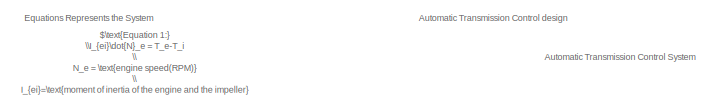
[diagram: root canvas - part 1/2, top left region]
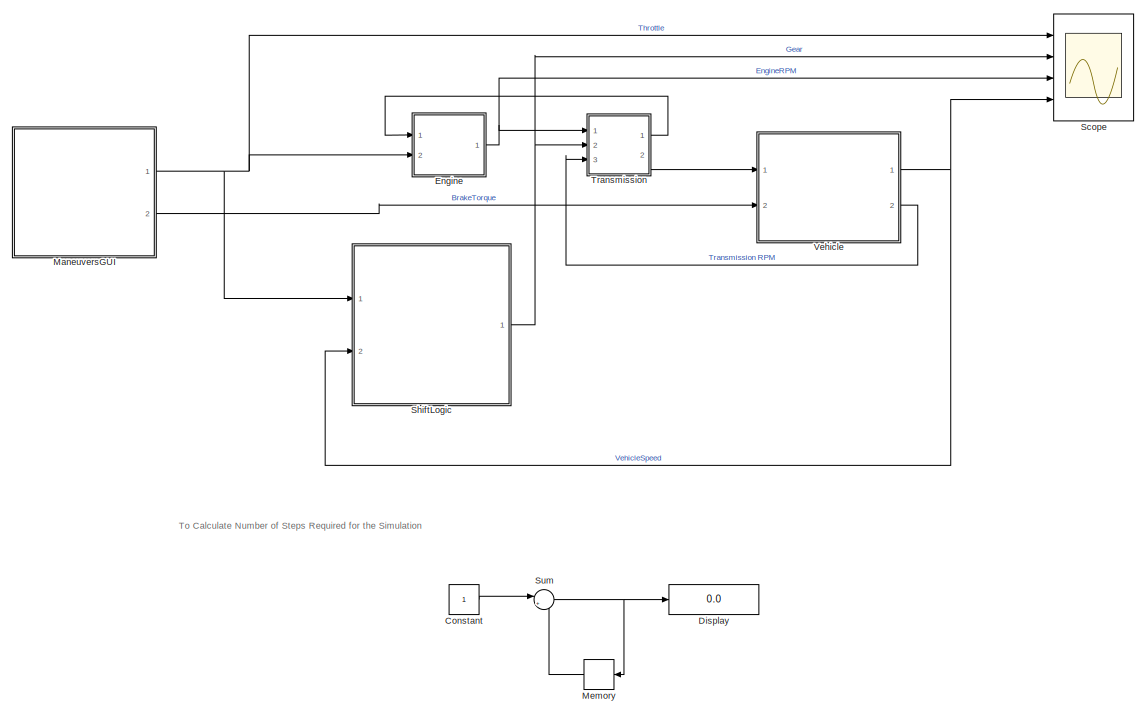
[diagram: root canvas - part 2/2, center side, full height]
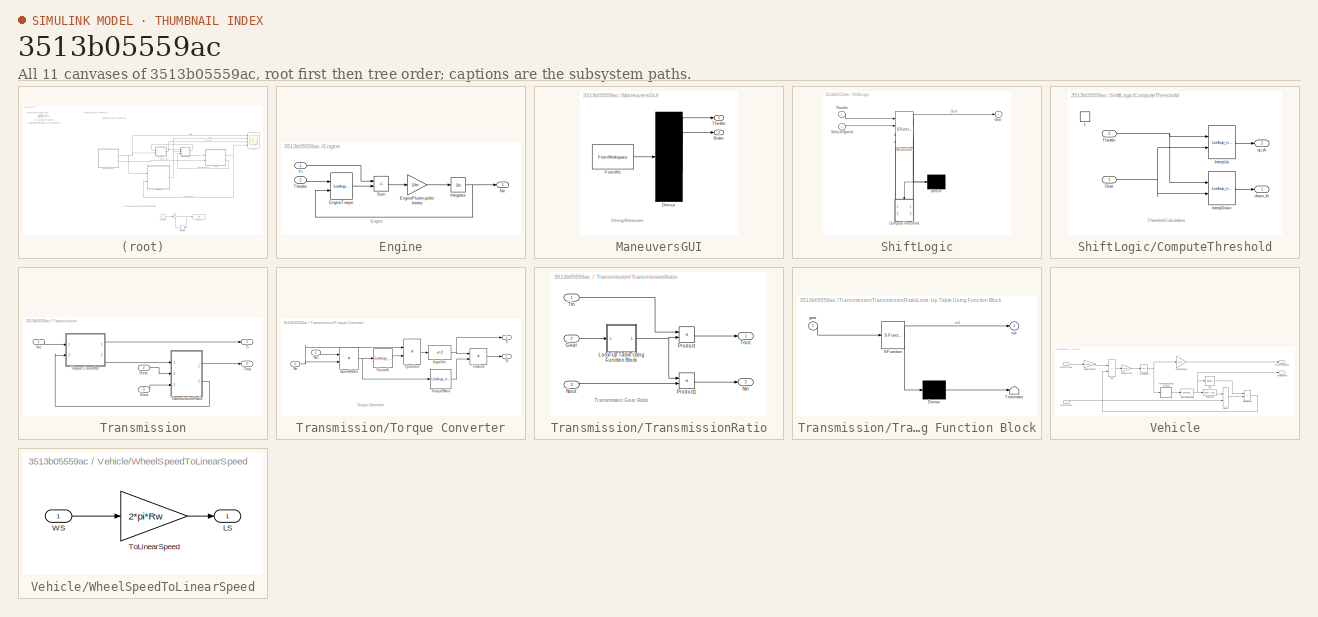
[diagram: thumbnail index - all 11 canvases of the model, root first then tree order]
MODEL slx_3513b05559ac
KIND model
CONFIG AbsTol = auto
CONFIG EnableMultiTasking = off
CONFIG FixedStep = 0.04
CONFIG MaxStep = auto
CONFIG MinStep = auto
CONFIG PreLoadFcn = clearvars\nload('vehicleData.mat')
CONFIG RelTol = 1e-3
CONFIG SampleTimeConstraint = Unconstrained
CONFIG SolverName = ode5
CONFIG StartFcn = cput= cputime;
CONFIG StartTime = 0.0
CONFIG StopFcn = disp("CPU Time Elapsed"); cputime-cput
CONFIG StopTime = 50
BLOCK [Constant] Constant
BLOCK [Display] Display
  Decimation = 1
  Ports = [1]
BLOCK [SubSystem] Engine
  Ports = [2, 1]
  RequestExecContextInheritance = off
BLOCK [Gain] Engine/EnginePlusImpellerInertia
  Gain = 1/Iei
  OutDataTypeStr = Inherit: Same as input
  ParamDataTypeStr = Inherit: Same as input
  SaturateOnIntegerOverflow = on
BLOCK [Lookup_n-D] Engine/EngineTorque
  BreakpointsForDimension1 = TH_VEC
  BreakpointsForDimension2 = NE_VEC
  InputPortMap = u0,u1
  Ports = [2, 1]
  Table = EMAP
BLOCK [Integrator] Engine/Integrator
  InitialCondition = 1000
  LimitOutput = on
  LowerSaturationLimit = 600
  Ports = [1, 1]
  UpperSaturationLimit = 6000
  ZeroCross = off
BLOCK [Outport] Engine/Ne
  Unit = rpm
  VectorParamsAs1DForOutWhenUnconnected = off
BLOCK [Sum] Engine/Sum
  IconShape = rectangular
  InputSameDT = on
  Inputs = -+
  OutDataTypeStr = Inherit: Same as first input
  Ports = [2, 1]
  SaturateOnIntegerOverflow = on
BLOCK [Inport] Engine/Throttle
  Port = 2
  Unit = %
BLOCK [Inport] Engine/Ti
  Unit = ft*lbf@torque
BLOCK [SubSystem] ManeuversGUI
  ClipboardFcn = sigbuilder_block('clipboard');
  CloseFcn = sigbuilder_block('close');
  ContinueFcn = sigbuilder_block('continue')
  CopyFcn = sigbuilder_block('copy');
  DeleteFcn = sigbuilder_block('delete');
  LoadFcn = sigbuilder_block('load');
  MaskHideContents = on
  ModelCloseFcn = sigbuilder_block('modelClose');
  NameChangeFcn = sigbuilder_block('namechange');
  OpenFcn = sigbuilder_block('open',[6 22.5 1012.5 455.25 ]);
  PauseFcn = sigbuilder_block('pause')
  Ports = [0, 2]
  PreSaveFcn = sigbuilder_block('preSave');
  RequestExecContextInheritance = off
  StartFcn = sigbuilder_block('start');
  StopFcn = sigbuilder_block('stop');
  Tag = STV Subsys
BLOCK [Outport] ManeuversGUI/Brake
  Port = 2
  Tag = STV Outport
  VectorParamsAs1DForOutWhenUnconnected = off
BLOCK [Demux] ManeuversGUI/Demux
  DisplayOption = none
  Outputs = 2
  Ports = [1, 2]
  Tag = STV Demux
BLOCK [FromWorkspace] ManeuversGUI/FromWs
  Tag = STV FromWs
  VariableName = tuvar
  ZeroCross = off
BLOCK [Outport] ManeuversGUI/Throttle
  Tag = STV Outport
  VectorParamsAs1DForOutWhenUnconnected = off
BLOCK [Memory] Memory
  NameLocation = top
BLOCK [Scope] Scope
  Floating = off
  NumInputPorts = 4
  Ports = [4]
  ScopeSpecificationString = Simulink.scopes.TimeScopeBlockCfg('CurrentConfiguration', extmgr.ConfigurationSet(extmgr.Configuration('Core','General UI',true),extmgr.Configuration('Core','Source UI',true),extmgr.Configuration('Sources','WiredSimulink',true),extmgr.Configuration('Visuals','Time Domain',true,'SerializedDisplays',{struct('MinYLimReal','-11.22436','MaxYLimReal','112.35826','YLabelReal','','MinYLimMag','0.00000','M...<+3434ch>
BLOCK [SubSystem] ShiftLogic
  ErrorFcn = Stateflow.Translate.translate
  PermitHierarchicalResolution = ExplicitOnly
  Ports = [2, 1]
  RequestExecContextInheritance = off
  SFBlockType = Chart
  TreatAsAtomicUnit = on
BLOCK [Demux] ShiftLogic/ Demux 
  Outputs = 1
  Ports = [1, 1]
BLOCK [S-Function] ShiftLogic/ SFunction 
  EnableBusSupport = on
  FunctionName = sf_sfun
  Parameters = TWAIT
  PortCounts = [4 4]
  Ports = [4, 4]
  SFcnIsStateOwnerBlock = off
  SFunctionDeploymentMode = off
  Tag = Stateflow S-Function 1
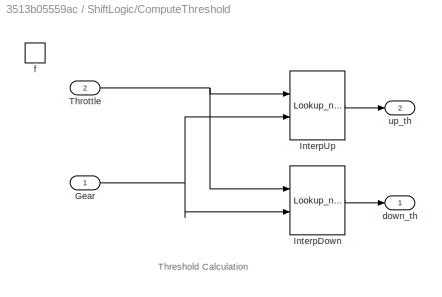
BLOCK [SubSystem] ShiftLogic/ComputeThreshold
  Ports = [2, 2, 0, 1]
  PreDeleteFcn = Stateflow.SLINSF.SimulinkMan.removePreDeleteFcn
  RequestExecContextInheritance = off
  UndoDeleteFcn = Stateflow.SLINSF.SimulinkMan.restorePreDeleteFcn
BLOCK [Inport] ShiftLogic/ComputeThreshold/Gear
BLOCK [Lookup_n-D] ShiftLogic/ComputeThreshold/InterpDown
  BreakpointsForDimension1 = DOWN_TH_BP
  BreakpointsForDimension2 = [1:4]
  InputPortMap = u0,u1
  InputSameDT = off
  LockScale = on
  OutDataTypeStr = double
  Ports = [2, 1]
  Table = DOWN_TABLE
BLOCK [Lookup_n-D] ShiftLogic/ComputeThreshold/InterpUp
  BreakpointsForDimension1 = UP_TH_BP
  BreakpointsForDimension2 = [1:4]
  InputPortMap = u0,u1
  InputSameDT = off
  LockScale = on
  OutDataTypeStr = double
  Ports = [2, 1]
  Table = UP_TABLE
BLOCK [Inport] ShiftLogic/ComputeThreshold/Throttle
  Port = 2
BLOCK [Outport] ShiftLogic/ComputeThreshold/down_th
  InitialOutput = 0
  VectorParamsAs1DForOutWhenUnconnected = off
BLOCK [TriggerPort] ShiftLogic/ComputeThreshold/f
  CopyFcn = Stateflow.SLINSF.SimulinkMan.removeBlockPreDeleteFcn
  Ports = []
  PreDeleteFcn = Stateflow.SLINSF.SimulinkMan.unsafePredeleteFcn
  StatesWhenEnabling = held
  TriggerType = function-call
  VariantControl = (inherit)
BLOCK [Outport] ShiftLogic/ComputeThreshold/up_th
  InitialOutput = 0
  Port = 2
  VectorParamsAs1DForOutWhenUnconnected = off
BLOCK [Outport] ShiftLogic/Gear
  VectorParamsAs1DForOutWhenUnconnected = off
BLOCK [Inport] ShiftLogic/Throttle
BLOCK [Inport] ShiftLogic/VehicleSpeed
  Port = 2
BLOCK [Sum] Sum
  Inputs = |++
  Ports = [2, 1]
BLOCK [SubSystem] Transmission
  Ports = [3, 2]
  RequestExecContextInheritance = off
BLOCK [Inport] Transmission/Gear
  Port = 2
  Unit = 1
BLOCK [Inport] Transmission/Ne
  Unit = rpm
BLOCK [Inport] Transmission/Nout
  Port = 3
  Unit = rpm
BLOCK [Outport] Transmission/Ti
  Unit = ft*lbf@torque
  VectorParamsAs1DForOutWhenUnconnected = off
BLOCK [SubSystem] Transmission/Torque Converter
  Ports = [2, 2]
  RequestExecContextInheritance = off
BLOCK [Lookup_n-D] Transmission/Torque Converter/FactorK
  BreakpointsForDimension1 = speedratio
  InputPortMap = u0
  NumberOfTableDimensions = 1
  Ports = [1, 1]
  SaturateOnIntegerOverflow = on
  Table = Kfactor
BLOCK [Fcn] Transmission/Torque Converter/Impeller
  Expr = u^2
BLOCK [Inport] Transmission/Torque Converter/Ne
BLOCK [Inport] Transmission/Torque Converter/Nin
  Port = 2
BLOCK [Product] Transmission/Torque Converter/Quotient
  InputSameDT = on
  Inputs = */
  OutDataTypeStr = Inherit: Same as first input
  Ports = [2, 1]
  SaturateOnIntegerOverflow = on
BLOCK [Product] Transmission/Torque Converter/SpeedRatio
  InputSameDT = on
  Inputs = */
  OutDataTypeStr = Inherit: Same as first input
  Ports = [2, 1]
  SaturateOnIntegerOverflow = on
BLOCK [Outport] Transmission/Torque Converter/Ti
  VectorParamsAs1DForOutWhenUnconnected = off
BLOCK [Lookup_n-D] Transmission/Torque Converter/TorqueRatio
  BreakpointsForDimension1 = speedratio
  InputPortMap = u0
  NumberOfTableDimensions = 1
  Ports = [1, 1]
  SaturateOnIntegerOverflow = on
  Table = Torkratio
BLOCK [Outport] Transmission/Torque Converter/Tt
  Port = 2
  VectorParamsAs1DForOutWhenUnconnected = off
BLOCK [Product] Transmission/Torque Converter/Turbine
  InputSameDT = on
  OutDataTypeStr = Inherit: Same as first input
  Ports = [2, 1]
  SaturateOnIntegerOverflow = on
BLOCK [Outport] Transmission/Tout
  Port = 2
  Unit = ft*lbf@torque
  VectorParamsAs1DForOutWhenUnconnected = off
BLOCK [SubSystem] Transmission/TransmissionRatio
  Ports = [3, 2]
  RequestExecContextInheritance = off
BLOCK [Inport] Transmission/TransmissionRatio/Gear
  Port = 2
  Unit = 1
BLOCK [SubSystem] Transmission/TransmissionRatio/Look-Up Table Using Function Block
  ErrorFcn = Stateflow.Translate.translate
  PermitHierarchicalResolution = ExplicitOnly
  Ports = [1, 1]
  RequestExecContextInheritance = off
  SFBlockType = MATLAB Function
  TreatAsAtomicUnit = on
BLOCK [Demux] Transmission/TransmissionRatio/Look-Up Table Using Function Block/ Demux 
  Outputs = 1
  Ports = [1, 1]
BLOCK [S-Function] Transmission/TransmissionRatio/Look-Up Table Using Function Block/ SFunction 
  EnableBusSupport = on
  FunctionName = sf_sfun
  PortCounts = [1 2]
  Ports = [1, 2]
  SFcnIsStateOwnerBlock = off
  SFunctionDeploymentMode = off
  Tag = Stateflow S-Function 3
BLOCK [Terminator] Transmission/TransmissionRatio/Look-Up Table Using Function Block/ Terminator 
BLOCK [Inport] Transmission/TransmissionRatio/Look-Up Table Using Function Block/gear
BLOCK [Outport] Transmission/TransmissionRatio/Look-Up Table Using Function Block/out
  VectorParamsAs1DForOutWhenUnconnected = off
BLOCK [Outport] Transmission/TransmissionRatio/Nin
  Port = 2
  Unit = rpm
  VectorParamsAs1DForOutWhenUnconnected = off
BLOCK [Inport] Transmission/TransmissionRatio/Nout
  Port = 3
  Unit = rpm
BLOCK [Product] Transmission/TransmissionRatio/Product
  InputSameDT = on
  OutDataTypeStr = Inherit: Same as first input
  Ports = [2, 1]
  SaturateOnIntegerOverflow = on
BLOCK [Product] Transmission/TransmissionRatio/Product1
  InputSameDT = on
  OutDataTypeStr = Inherit: Same as first input
  Ports = [2, 1]
  SaturateOnIntegerOverflow = on
BLOCK [Inport] Transmission/TransmissionRatio/Tin
  Unit = ft*lbf@torque
BLOCK [Outport] Transmission/TransmissionRatio/Tout
  Unit = ft*lbf@torque
  VectorParamsAs1DForOutWhenUnconnected = off
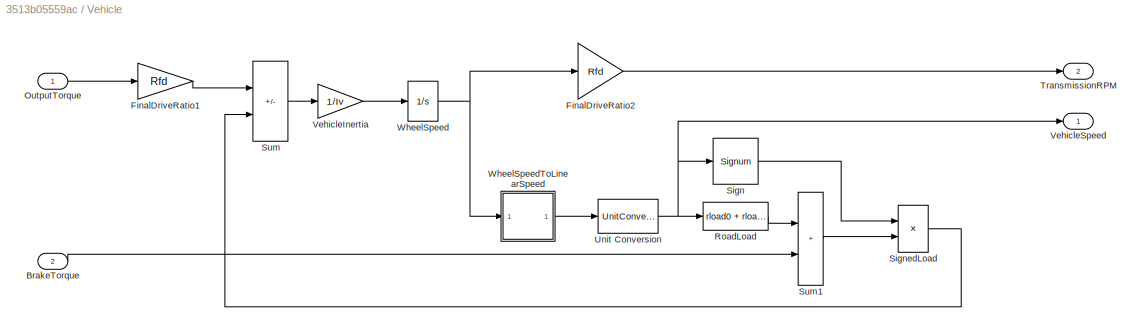
BLOCK [SubSystem] Vehicle
  Ports = [2, 2]
  RequestExecContextInheritance = off
BLOCK [Inport] Vehicle/BrakeTorque
  Port = 2
  Unit = ft*lbf@torque
BLOCK [Gain] Vehicle/FinalDriveRatio1
  Gain = Rfd
  OutDataTypeStr = Inherit: Same as input
  ParamDataTypeStr = Inherit: Same as input
  SaturateOnIntegerOverflow = on
BLOCK [Gain] Vehicle/FinalDriveRatio2
  Gain = Rfd
  OutDataTypeStr = Inherit: Same as input
  ParamDataTypeStr = Inherit: Same as input
  SaturateOnIntegerOverflow = on
BLOCK [Inport] Vehicle/OutputTorque
  Unit = ft*lbf@torque
BLOCK [Fcn] Vehicle/RoadLoad
  Expr = rload0 + rload2*u^2
BLOCK [Signum] Vehicle/Sign
BLOCK [Product] Vehicle/SignedLoad
  InputSameDT = on
  OutDataTypeStr = Inherit: Same as first input
  Ports = [2, 1]
  SaturateOnIntegerOverflow = on
BLOCK [Sum] Vehicle/Sum
  IconShape = rectangular
  InputSameDT = on
  Inputs = +-
  OutDataTypeStr = Inherit: Same as first input
  Ports = [2, 1]
  SaturateOnIntegerOverflow = on
BLOCK [Sum] Vehicle/Sum1
  IconShape = rectangular
  InputSameDT = on
  OutDataTypeStr = Inherit: Same as first input
  Ports = [2, 1]
  SaturateOnIntegerOverflow = on
BLOCK [Outport] Vehicle/TransmissionRPM
  Port = 2
  Unit = rpm
  VectorParamsAs1DForOutWhenUnconnected = off
BLOCK [UnitConversion] Vehicle/Unit Conversion
BLOCK [Gain] Vehicle/VehicleInertia
  Gain = 1/Iv
  OutDataTypeStr = Inherit: Same as input
  ParamDataTypeStr = Inherit: Same as input
  SaturateOnIntegerOverflow = on
BLOCK [Outport] Vehicle/VehicleSpeed
  Unit = mph
  VectorParamsAs1DForOutWhenUnconnected = off
BLOCK [Integrator] Vehicle/WheelSpeed
  InitialCondition = N20/Rfd
  Ports = [1, 1]
  ZeroCross = off
BLOCK [SubSystem] Vehicle/WheelSpeedToLinearSpeed
  Ports = [1, 1]
  RequestExecContextInheritance = off
BLOCK [Outport] Vehicle/WheelSpeedToLinearSpeed/LS
  Unit = ft/min
  VectorParamsAs1DForOutWhenUnconnected = off
BLOCK [Gain] Vehicle/WheelSpeedToLinearSpeed/ToLinearSpeed
  Gain = 2*pi*Rw
  OutDataTypeStr = Inherit: Same as input
  ParamDataTypeStr = Inherit: Same as input
  SaturateOnIntegerOverflow = on
BLOCK [Inport] Vehicle/WheelSpeedToLinearSpeed/WS
  Unit = rpm
ANNOTATION (root): Automatic Transmission Control System
ANNOTATION (root): To Calculate Number of Steps Required for the Simulation
ANNOTATION (root): $\text{Equation 1:} \\I_{ei}\dot{N}_e = T_e-T_i \\ N_e = \text{engine speed(RPM)} \\ I_{ei}=\text{moment of inertia of the engine and the impeller} \\ T_e,T_i=\text{engine and impeller torque} \\\\ \text{Equation 2:} \\ T_i = \frac{N^2_e}{K^2} \\K = f_2\frac{N_{in}}{N_e}= \text{K-factor (capacity)} \\ N_{in} = \text{speed of turbine (torque converter output)} \\ R_{TQ}= f_3\frac{N_{in}}{N_e}= \tex...<+750ch>
ANNOTATION (root): Automatic Transmission Control design
ANNOTATION (root): Equations Represents the System
ANNOTATION Engine: Engine
ANNOTATION ManeuversGUI: Driving Maneuvers
ANNOTATION ShiftLogic/ComputeThreshold: Threshold Calculation
ANNOTATION Transmission/Torque Converter: Torque Converter
ANNOTATION Transmission/TransmissionRatio: Transmission Gear Ratio
LINE Constant:1 -> Sum:1
LINE Engine/EnginePlusImpellerInertia:1 -> Engine/Integrator:1
LINE Engine/EngineTorque:1 -> Engine/Sum:2
NET Engine/Integrator:1 -> Engine/EngineTorque:2, Engine/Ne:1
LINE Engine/Sum:1 -> Engine/EnginePlusImpellerInertia:1
LINE Engine/Throttle:1 -> Engine/EngineTorque:1
LINE Engine/Ti:1 -> Engine/Sum:1
NET Engine:1 -> Scope:3, Transmission:1
LINE ManeuversGUI/Demux:1 -> ManeuversGUI/Throttle:1
LINE ManeuversGUI/Demux:2 -> ManeuversGUI/Brake:1
LINE ManeuversGUI/FromWs:1 -> ManeuversGUI/Demux:1
NET ManeuversGUI:1 -> Engine:2, Scope:1, ShiftLogic:1
LINE ManeuversGUI:2 -> Vehicle:2
LINE Memory:1 -> Sum:2
NET ShiftLogic:1 -> Scope:2, Transmission:2
NET Sum:1 -> Display:1, Memory:1
LINE Transmission/Gear:1 -> Transmission/TransmissionRatio:2
LINE Transmission/Ne:1 -> Transmission/Torque Converter:1
LINE Transmission/Nout:1 -> Transmission/TransmissionRatio:3
LINE Transmission/Torque Converter/FactorK:1 -> Transmission/Torque Converter/Quotient:2
NET Transmission/Torque Converter/Impeller:1 -> Transmission/Torque Converter/Ti:1, Transmission/Torque Converter/Turbine:1
NET Transmission/Torque Converter/Ne:1 -> Transmission/Torque Converter/Quotient:1, Transmission/Torque Converter/SpeedRatio:2
LINE Transmission/Torque Converter/Nin:1 -> Transmission/Torque Converter/SpeedRatio:1
LINE Transmission/Torque Converter/Quotient:1 -> Transmission/Torque Converter/Impeller:1
NET Transmission/Torque Converter/SpeedRatio:1 -> Transmission/Torque Converter/FactorK:1, Transmission/Torque Converter/TorqueRatio:1
LINE Transmission/Torque Converter/TorqueRatio:1 -> Transmission/Torque Converter/Turbine:2
LINE Transmission/Torque Converter/Turbine:1 -> Transmission/Torque Converter/Tt:1
LINE Transmission/Torque Converter:1 -> Transmission/Ti:1
LINE Transmission/Torque Converter:2 -> Transmission/TransmissionRatio:1
LINE Transmission/TransmissionRatio/Gear:1 -> Transmission/TransmissionRatio/Look-Up Table Using Function Block:1
NET Transmission/TransmissionRatio/Look-Up Table Using Function Block:1 -> Transmission/TransmissionRatio/Product1:1, Transmission/TransmissionRatio/Product:2
LINE Transmission/TransmissionRatio/Nout:1 -> Transmission/TransmissionRatio/Product1:2
LINE Transmission/TransmissionRatio/Product1:1 -> Transmission/TransmissionRatio/Nin:1
LINE Transmission/TransmissionRatio/Product:1 -> Transmission/TransmissionRatio/Tout:1
LINE Transmission/TransmissionRatio/Tin:1 -> Transmission/TransmissionRatio/Product:1
LINE Transmission/TransmissionRatio:1 -> Transmission/Tout:1
LINE Transmission/TransmissionRatio:2 -> Transmission/Torque Converter:2
LINE Transmission:1 -> Engine:1
LINE Transmission:2 -> Vehicle:1
LINE Vehicle/BrakeTorque:1 -> Vehicle/Sum1:2
LINE Vehicle/FinalDriveRatio1:1 -> Vehicle/Sum:1
LINE Vehicle/FinalDriveRatio2:1 -> Vehicle/TransmissionRPM:1
LINE Vehicle/OutputTorque:1 -> Vehicle/FinalDriveRatio1:1
LINE Vehicle/RoadLoad:1 -> Vehicle/Sum1:1
LINE Vehicle/Sign:1 -> Vehicle/SignedLoad:1
LINE Vehicle/SignedLoad:1 -> Vehicle/Sum:2
LINE Vehicle/Sum1:1 -> Vehicle/SignedLoad:2
LINE Vehicle/Sum:1 -> Vehicle/VehicleInertia:1
NET Vehicle/Unit Conversion:1 -> Vehicle/RoadLoad:1, Vehicle/Sign:1, Vehicle/VehicleSpeed:1
LINE Vehicle/VehicleInertia:1 -> Vehicle/WheelSpeed:1
NET Vehicle/WheelSpeed:1 -> Vehicle/FinalDriveRatio2:1, Vehicle/WheelSpeedToLinearSpeed:1
LINE Vehicle/WheelSpeedToLinearSpeed/ToLinearSpeed:1 -> Vehicle/WheelSpeedToLinearSpeed/LS:1
LINE Vehicle/WheelSpeedToLinearSpeed/WS:1 -> Vehicle/WheelSpeedToLinearSpeed/ToLinearSpeed:1
LINE Vehicle/WheelSpeedToLinearSpeed:1 -> Vehicle/Unit Conversion:1
NET Vehicle:1 -> Scope:4, ShiftLogic:2
LINE Vehicle:2 -> Transmission:3
note: NET lines group one-source signal fan-out (src -> all destinations, sorted); 1:1 wires keep LINE
CHART ShiftLogic states=10 transitions=14
  STATE_LABEL 'gear_state'
  STATE_LABEL 'first\nentry:\nGear = 1;'
  STATE_LABEL 'second\nentry:\nGear = 2;'
  STATE_LABEL 'third\nentry:\nGear = 3;'
  STATE_LABEL 'fourth\nentry:\nGear = 4;'
  STATE_LABEL 'DOWN'
  STATE_LABEL 'UP'
  STATE_LABEL 'DOWN'
  STATE_LABEL 'UP'
  STATE_LABEL 'DOWN'
  STATE_LABEL 'UP'
  STATE_LABEL 'first\nentry:\nGear = 1;'
  STATE_LABEL 'second\nentry:\nGear = 2;'
  STATE_LABEL 'third\nentry:\nGear = 3;'
  STATE_LABEL 'fourth\nentry:\nGear = 4;'
  STATE_LABEL 'selection_state\nduring:\n[down_th, up_th] = ComputeThreshold(Gear,Throttle);'
  STATE_LABEL 'steady_state'
  STATE_LABEL 'upshifting'
  STATE_LABEL 'downshifting'
  STATE_LABEL 'after(TWAIT,tick)\n[VehicleSpeed <= down_th]\n{gear_state.DOWN}'
  STATE_LABEL '[VehicleSpeed > down_th]'
  STATE_LABEL '[VehicleSpeed < down_th]'
  STATE_LABEL '[VehicleSpeed < up_th]'
  STATE_LABEL '[VehicleSpeed > up_th]'
  STATE_LABEL 'after(TWAIT,tick)\n[VehicleSpeed >= up_th]\n{gear_state.UP}'
  STATE_LABEL 'steady_state'
  STATE_LABEL 'upshifting'
  STATE_LABEL 'downshifting'
  STATE_LABEL '[down_th,up_th] = ComputeThreshold(Gear,Throttle)'
CHART Transmission/TransmissionRatio/Look-Up
Table Using Function Block states=1 transitions=1
  STATE_LABEL 'eML_blk_kernel()'
  STATE_LABEL 'SCRIPT:\nfunction out = fcn(gear)\n    %#codegen\n    table = [2.393 1.450 1.000 0.677];\n    switch(gear)\n        case gearType.fourth\n            out=table(4);        \n        case gearType.third\n            out=table(3);            \n        case gearType.second\n            out=table(2);\n        otherwise % gearType.first\n            out=table(1);\n    end\n    \nend\n'
CHART  states=0 transitions=0
CHART  states=0 transitions=0
